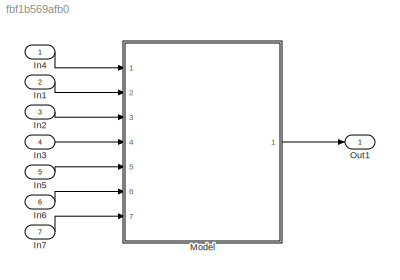
MODEL slx_fbf1b569afb0
KIND model
CONFIG AbsTol = auto
CONFIG EnableMultiTasking = on
CONFIG FixedStep = 1.000000
CONFIG MaxStep = auto
CONFIG MinStep = auto
CONFIG RelTol = 1e-3
CONFIG SampleTimeConstraint = Unconstrained
CONFIG Solver = FixedStepDiscrete
CONFIG SolverName = FixedStepDiscrete
CONFIG StartTime = 0.0
CONFIG StopTime = 10.0
WORKSPACE source: MAT-file member
WORKSPACE input_struct: struct (value not decoded)
BLOCK [Inport] In1
  IconDisplay = Port number
  OutDataTypeStr = double
  Port = 2
BLOCK [Inport] In2
  IconDisplay = Port number
  OutDataTypeStr = double
  Port = 3
BLOCK [Inport] In3
  IconDisplay = Port number
  OutDataTypeStr = double
  Port = 4
BLOCK [Inport] In4
  IconDisplay = Port number
  OutDataTypeStr = boolean
BLOCK [Inport] In5
  IconDisplay = Port number
  OutDataTypeStr = double
  Port = 5
BLOCK [Inport] In6
  IconDisplay = Port number
  OutDataTypeStr = double
  Port = 6
BLOCK [Inport] In7
  IconDisplay = Port number
  OutDataTypeStr = double
  Port = 7
BLOCK [ModelReference] Model
  ModelNameDialog = AltitudeControl.slx
  ModelReferenceVersion = 1.10
  Ports = [7, 1]
  Variant = off
BLOCK [Outport] Out1
  IconDisplay = Port number
LINE In1:1 -> Model:2
LINE In2:1 -> Model:3
LINE In3:1 -> Model:4
LINE In4:1 -> Model:1
LINE In5:1 -> Model:5
LINE In6:1 -> Model:6
LINE In7:1 -> Model:7
LINE Model:1 -> Out1:1
